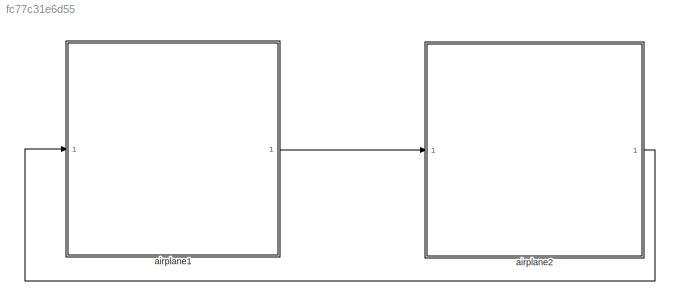
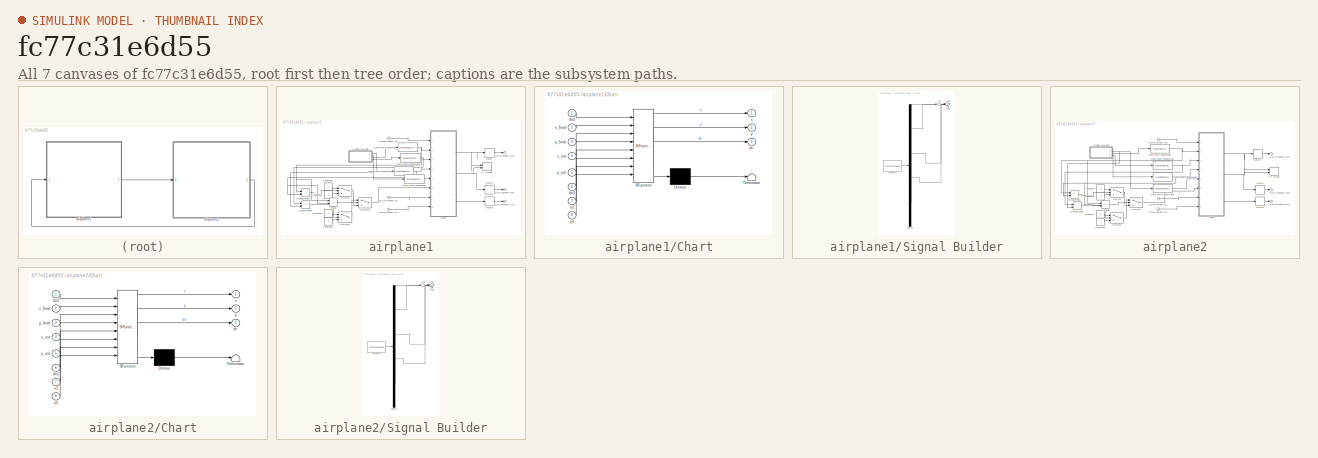
[diagram: thumbnail index - all 7 canvases of the model, root first then tree order]
MODEL slx_fc77c31e6d55
KIND model
CONFIG AbsTol = auto
CONFIG EnableMultiTasking = off
CONFIG FixedStep = 0.1
CONFIG MaxStep = auto
CONFIG MinStep = auto
CONFIG RelTol = 1e-3
CONFIG SampleTimeConstraint = Unconstrained
CONFIG SolverName = ode15s
CONFIG StartTime = 0.0
CONFIG StopTime = 50.0
WORKSPACE source: mxarray member
WORKSPACE interface_msg1: Simulink.Bus (value not decoded)
WORKSPACE interface_msg2: Simulink.Bus (value not decoded)
BLOCK [SubSystem] airplane1
  PortSchema = {"entries":[{"content":{"headerSize":26,"margin":15,"minimumSpacing":25,"sides":[{"content":{"connectorIds":["In1"]},"type":"ConnectorPlacement.EquallySpacedRectSide","uuid":"381f2f55-2706-4a20-9b5c-d1d238ade6d6"},{"content":{"connectorIds":["Out1"],"side":"RIGHT"},"type":"ConnectorPlacement.EquallySpacedRectSide","uuid":"25d2ce27-d2f9-4747-86b3-2bcde07e6841"},{"content":{"connectorIds":[],"side":...<+432ch>
  Ports = [1, 1]
  RequestExecContextInheritance = off
BLOCK [Inport] airplane1/Bus Element In1
BLOCK [Inport] airplane1/Bus Element In7
BLOCK [Inport] airplane1/Bus Element In8
BLOCK [Outport] airplane1/Bus Element Out1
BLOCK [Outport] airplane1/Bus Element Out2
BLOCK [Outport] airplane1/Bus Element Out4
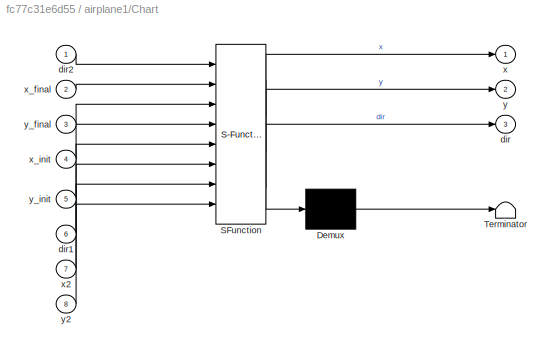
BLOCK [SubSystem] airplane1/Chart
  ErrorFcn = Stateflow.Translate.translate
  PermitHierarchicalResolution = ExplicitOnly
  Ports = [8, 3]
  RequestExecContextInheritance = off
  SFBlockType = Chart
  TreatAsAtomicUnit = on
BLOCK [Demux] airplane1/Chart/ Demux 
  Outputs = 1
  Ports = [1, 1]
BLOCK [S-Function] airplane1/Chart/ SFunction 
  EnableBusSupport = on
  FunctionName = sf_sfun
  PortCounts = [8 4]
  Ports = [8, 4]
  SFcnIsStateOwnerBlock = off
  SFunctionDeploymentMode = off
  Tag = Stateflow S-Function 1
BLOCK [Terminator] airplane1/Chart/ Terminator 
BLOCK [Outport] airplane1/Chart/dir
  Port = 3
BLOCK [Inport] airplane1/Chart/dir1
  Port = 6
BLOCK [Inport] airplane1/Chart/dir2
BLOCK [Outport] airplane1/Chart/x
BLOCK [Inport] airplane1/Chart/x2
  Port = 7
BLOCK [Inport] airplane1/Chart/x_final
  Port = 2
BLOCK [Inport] airplane1/Chart/x_init
  Port = 4
BLOCK [Outport] airplane1/Chart/y
  Port = 2
BLOCK [Inport] airplane1/Chart/y2
  Port = 8
BLOCK [Inport] airplane1/Chart/y_final
  Port = 3
BLOCK [Inport] airplane1/Chart/y_init
  Port = 5
BLOCK [Constant] airplane1/Constant4
  OutDataTypeStr = uint32
BLOCK [Constant] airplane1/Constant5
  OutDataTypeStr = uint32
  Value = 3
BLOCK [Constant] airplane1/Constant6
  OutDataTypeStr = uint32
  Value = 2
BLOCK [Constant] airplane1/Constant7
  OutDataTypeStr = uint32
  Value = 0
BLOCK [DataTypeConversion] airplane1/Data Type Conversion
  OutDataTypeStr = int32
  RndMeth = Floor
  SaturateOnIntegerOverflow = off
BLOCK [DataTypeConversion] airplane1/Data Type Conversion1
  OutDataTypeStr = int32
  RndMeth = Floor
  SaturateOnIntegerOverflow = off
BLOCK [DataTypeConversion] airplane1/Data Type Conversion2
  OutDataTypeStr = int32
  RndMeth = Floor
  SaturateOnIntegerOverflow = off
BLOCK [DataTypeConversion] airplane1/Data Type Conversion3
  OutDataTypeStr = int32
  RndMeth = Floor
  SaturateOnIntegerOverflow = off
BLOCK [Delay] airplane1/Delay
  DelayLength = 1
  InputPortMap = u0
  Ports = [1, 1]
BLOCK [Delay] airplane1/Delay1
  DelayLength = 1
  InputPortMap = u0
  Ports = [1, 1]
BLOCK [Delay] airplane1/Delay2
  DelayLength = 1
  InputPortMap = u0
  Ports = [1, 1]
BLOCK [RelationalOperator] airplane1/Equal
  InputSameDT = off
  Operator = ==
  OutDataTypeStr = boolean
  Ports = [2, 1]
  RndMeth = Simplest
BLOCK [RelationalOperator] airplane1/GreaterThan
  InputSameDT = off
  Operator = >
  OutDataTypeStr = boolean
  Ports = [2, 1]
  RndMeth = Simplest
BLOCK [RelationalOperator] airplane1/GreaterThan1
  InputSameDT = off
  Operator = >
  OutDataTypeStr = boolean
  Ports = [2, 1]
  RndMeth = Simplest
BLOCK [SubSystem] airplane1/Signal Builder
  ClipboardFcn = sigbuilder_block('clipboard');
  CloseFcn = sigbuilder_block('close');
  ContinueFcn = sigbuilder_block('continue');
  CopyFcn = sigbuilder_block('copy');
  DeleteFcn = sigbuilder_block('delete');
  LoadFcn = sigbuilder_block('load');
  MaskHideContents = on
  ModelCloseFcn = sigbuilder_block('modelClose');
  NameChangeFcn = sigbuilder_block('namechange');
  OpenFcn = sigbuilder_block('open',[351.75 138 550.5 355.5 ]);
  PauseFcn = sigbuilder_block('pause');
  Ports = [0, 4]
  PreSaveFcn = sigbuilder_block('preSave');
  RequestExecContextInheritance = off
  StartFcn = sigbuilder_block('start');
  StopFcn = sigbuilder_block('stop');
  Tag = STV Subsys
BLOCK [Demux] airplane1/Signal Builder/Demux
  DisplayOption = none
  Ports = [1, 4]
  Tag = STV Demux
BLOCK [FromWorkspace] airplane1/Signal Builder/FromWs
  Tag = STV FromWs
  VariableName = tuvar
BLOCK [Outport] airplane1/Signal Builder/x_final
  Port = 3
  Tag = STV Outport
BLOCK [Outport] airplane1/Signal Builder/x_init
  Tag = STV Outport
BLOCK [Outport] airplane1/Signal Builder/y_final
  Port = 4
  Tag = STV Outport
BLOCK [Outport] airplane1/Signal Builder/y_init
  Port = 2
  Tag = STV Outport
BLOCK [Switch] airplane1/Switch
  Criteria = u2 > Threshold
  InputSameDT = off
  SaturateOnIntegerOverflow = off
BLOCK [Switch] airplane1/Switch1
  Criteria = u2 > Threshold
  InputSameDT = off
  SaturateOnIntegerOverflow = off
BLOCK [Switch] airplane1/Switch2
  Criteria = u2 ~= 0
  InputSameDT = off
  OutDataTypeStr = int32
  SaturateOnIntegerOverflow = off
BLOCK [Record] airplane1/XY Graph
  CompatibilityTag = XY
  FileSettingsInternal = {"entries":[{"content":{"excelSettings":{"content":{},"type":"Streamout.ExcelSettings"}},"type":"Streamout.FileSettingStorage","uuid":"259eee5e-7291-4375-968a-4c28429b4305"}],"packageUris":["http://schema.mathworks.com/mf0/streamout_blocks/R2020a"],"version":"1.0"}
  Layout = [1 1]
  Ports = [2]
  SignalsInternal = {"entries":[{"content":{"signals":[{"content":{"blockPath":["prj_v2_sb/airplane1/XY Graph"],"channel":[],"dimensions":[1],"domain":"prj_v2_sb/airplane1/XY Graph","lineColor":"#a2142f","plots":[1],"port":1,"sid":[""],"signalID":8888,"signalName":"Chart:1"},"type":"RecordBlkView.Signal","uuid":"75ce961a-c881-462b-a8e4-1a08f6d6652d"},{"content":{"blockPath":["prj_v2_sb/airplane1/XY Graph"],"channel":...<+407ch>
  VisualizationBindings = {"xyplotplugin":{"info":[{"series":[{"bindingParametersList":[{"parameter":"X-Axis","signalID":8888,"signalName":"Chart:1"},{"parameter":"Y-Axis","signalID":8892,"signalName":"Chart:2"}],"seriesID":35656}],"subplotID":1}]}}
BLOCK [SubSystem] airplane2
  PortSchema = {"entries":[{"content":{"headerSize":26,"margin":15,"minimumSpacing":25,"sides":[{"content":{"connectorIds":["In1"]},"type":"ConnectorPlacement.EquallySpacedRectSide","uuid":"381f2f55-2706-4a20-9b5c-d1d238ade6d6"},{"content":{"connectorIds":["Out1"],"side":"RIGHT"},"type":"ConnectorPlacement.EquallySpacedRectSide","uuid":"25d2ce27-d2f9-4747-86b3-2bcde07e6841"},{"content":{"connectorIds":[],"side":...<+432ch>
  Ports = [1, 1]
  RequestExecContextInheritance = off
BLOCK [Inport] airplane2/Bus Element In7
BLOCK [Inport] airplane2/Bus Element In8
BLOCK [Inport] airplane2/Bus Element In9
BLOCK [Outport] airplane2/Bus Element Out2
BLOCK [Outport] airplane2/Bus Element Out3
BLOCK [Outport] airplane2/Bus Element Out4
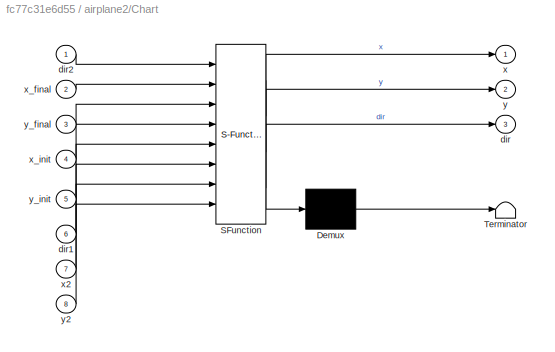
BLOCK [SubSystem] airplane2/Chart
  ErrorFcn = Stateflow.Translate.translate
  PermitHierarchicalResolution = ExplicitOnly
  Ports = [8, 3]
  RequestExecContextInheritance = off
  SFBlockType = Chart
  TreatAsAtomicUnit = on
BLOCK [Demux] airplane2/Chart/ Demux 
  Outputs = 1
  Ports = [1, 1]
BLOCK [S-Function] airplane2/Chart/ SFunction 
  EnableBusSupport = on
  FunctionName = sf_sfun
  PortCounts = [8 4]
  Ports = [8, 4]
  SFcnIsStateOwnerBlock = off
  SFunctionDeploymentMode = off
  Tag = Stateflow S-Function 3
BLOCK [Terminator] airplane2/Chart/ Terminator 
BLOCK [Outport] airplane2/Chart/dir
  Port = 3
BLOCK [Inport] airplane2/Chart/dir1
  Port = 6
BLOCK [Inport] airplane2/Chart/dir2
BLOCK [Outport] airplane2/Chart/x
BLOCK [Inport] airplane2/Chart/x2
  Port = 7
BLOCK [Inport] airplane2/Chart/x_final
  Port = 2
BLOCK [Inport] airplane2/Chart/x_init
  Port = 4
BLOCK [Outport] airplane2/Chart/y
  Port = 2
BLOCK [Inport] airplane2/Chart/y2
  Port = 8
BLOCK [Inport] airplane2/Chart/y_final
  Port = 3
BLOCK [Inport] airplane2/Chart/y_init
  Port = 5
BLOCK [Constant] airplane2/Constant4
  OutDataTypeStr = uint32
BLOCK [Constant] airplane2/Constant5
  OutDataTypeStr = uint32
  Value = 3
BLOCK [Constant] airplane2/Constant6
  OutDataTypeStr = uint32
  Value = 2
BLOCK [Constant] airplane2/Constant7
  OutDataTypeStr = uint32
  Value = 0
BLOCK [DataTypeConversion] airplane2/Data Type Conversion1
  OutDataTypeStr = int32
  RndMeth = Floor
  SaturateOnIntegerOverflow = off
BLOCK [DataTypeConversion] airplane2/Data Type Conversion2
  OutDataTypeStr = int32
  RndMeth = Floor
  SaturateOnIntegerOverflow = off
BLOCK [DataTypeConversion] airplane2/Data Type Conversion3
  OutDataTypeStr = int32
  RndMeth = Floor
  SaturateOnIntegerOverflow = off
BLOCK [DataTypeConversion] airplane2/Data Type Conversion4
  OutDataTypeStr = int32
  RndMeth = Floor
  SaturateOnIntegerOverflow = off
BLOCK [Delay] airplane2/Delay1
  DelayLength = 1
  InputPortMap = u0
  Ports = [1, 1]
BLOCK [Delay] airplane2/Delay2
  DelayLength = 1
  InputPortMap = u0
  Ports = [1, 1]
BLOCK [Delay] airplane2/Delay3
  DelayLength = 1
  InputPortMap = u0
  Ports = [1, 1]
BLOCK [RelationalOperator] airplane2/Equal
  InputSameDT = off
  Operator = ==
  OutDataTypeStr = boolean
  Ports = [2, 1]
  RndMeth = Simplest
BLOCK [RelationalOperator] airplane2/GreaterThan
  InputSameDT = off
  Operator = >
  OutDataTypeStr = boolean
  Ports = [2, 1]
  RndMeth = Simplest
BLOCK [RelationalOperator] airplane2/GreaterThan1
  InputSameDT = off
  Operator = >
  OutDataTypeStr = boolean
  Ports = [2, 1]
  RndMeth = Simplest
BLOCK [SubSystem] airplane2/Signal Builder
  ClipboardFcn = sigbuilder_block('clipboard');
  CloseFcn = sigbuilder_block('close');
  ContinueFcn = sigbuilder_block('continue');
  CopyFcn = sigbuilder_block('copy');
  DeleteFcn = sigbuilder_block('delete');
  LoadFcn = sigbuilder_block('load');
  MaskHideContents = on
  ModelCloseFcn = sigbuilder_block('modelClose');
  NameChangeFcn = sigbuilder_block('namechange');
  OpenFcn = sigbuilder_block('open',[351.75 138 550.5 355.5 ]);
  PauseFcn = sigbuilder_block('pause');
  Ports = [0, 4]
  PreSaveFcn = sigbuilder_block('preSave');
  RequestExecContextInheritance = off
  StartFcn = sigbuilder_block('start');
  StopFcn = sigbuilder_block('stop');
  Tag = STV Subsys
BLOCK [Demux] airplane2/Signal Builder/Demux
  DisplayOption = none
  Ports = [1, 4]
  Tag = STV Demux
BLOCK [FromWorkspace] airplane2/Signal Builder/FromWs
  Tag = STV FromWs
  VariableName = tuvar
BLOCK [Outport] airplane2/Signal Builder/x_final
  Port = 3
  Tag = STV Outport
BLOCK [Outport] airplane2/Signal Builder/x_init
  Tag = STV Outport
BLOCK [Outport] airplane2/Signal Builder/y_final
  Port = 4
  Tag = STV Outport
BLOCK [Outport] airplane2/Signal Builder/y_init
  Port = 2
  Tag = STV Outport
BLOCK [Switch] airplane2/Switch
  Criteria = u2 > Threshold
  InputSameDT = off
  SaturateOnIntegerOverflow = off
BLOCK [Switch] airplane2/Switch1
  Criteria = u2 > Threshold
  InputSameDT = off
  SaturateOnIntegerOverflow = off
BLOCK [Switch] airplane2/Switch2
  Criteria = u2 ~= 0
  InputSameDT = off
  OutDataTypeStr = int32
  SaturateOnIntegerOverflow = off
BLOCK [Record] airplane2/XY Graph
  CompatibilityTag = XY
  FileSettingsInternal = {"entries":[{"content":{"excelSettings":{"content":{},"type":"Streamout.ExcelSettings"}},"type":"Streamout.FileSettingStorage","uuid":"aa3f6859-6199-4ebf-9d41-a61cce50d281"}],"packageUris":["http://schema.mathworks.com/mf0/streamout_blocks/R2020a"],"version":"1.0"}
  Layout = [1 1]
  Ports = [2]
  SignalsInternal = {"entries":[{"content":{"signals":[{"content":{"blockPath":["prj_v2_sb/airplane2/XY Graph"],"channel":[],"dimensions":[1],"domain":"prj_v2_sb/airplane2/XY Graph","lineColor":"#a2142f","plots":[1],"port":1,"sid":[""],"signalID":8896,"signalName":"Chart:1"},"type":"RecordBlkView.Signal","uuid":"11e98f95-e29f-45c0-9cfd-6f0bf2296910"},{"content":{"blockPath":["prj_v2_sb/airplane2/XY Graph"],"channel":...<+407ch>
  VisualizationBindings = {"xyplotplugin":{"info":[{"series":[{"bindingParametersList":[{"parameter":"X-Axis","signalID":8896,"signalName":"Chart:1"},{"parameter":"Y-Axis","signalID":8900,"signalName":"Chart:2"}],"seriesID":52745}],"subplotID":1}]}}
LINE airplane1/Bus Element In1:1 -> airplane1/Chart:7
LINE airplane1/Bus Element In7:1 -> airplane1/Chart:8
LINE airplane1/Bus Element In8:1 -> airplane1/Chart:1
NET airplane1/Chart:1 -> airplane1/Delay:1, airplane1/XY Graph:1
NET airplane1/Chart:2 -> airplane1/Delay1:1, airplane1/XY Graph:2
LINE airplane1/Chart:3 -> airplane1/Delay2:1
LINE airplane1/Constant4:1 -> airplane1/Switch:1
LINE airplane1/Constant5:1 -> airplane1/Switch:3
LINE airplane1/Constant6:1 -> airplane1/Switch1:3
LINE airplane1/Constant7:1 -> airplane1/Switch1:1
NET airplane1/Data Type Conversion1:1 -> airplane1/Chart:3, airplane1/GreaterThan1:1
NET airplane1/Data Type Conversion2:1 -> airplane1/Chart:4, airplane1/Equal:2, airplane1/GreaterThan:2
LINE airplane1/Data Type Conversion3:1 -> airplane1/Chart:5
NET airplane1/Data Type Conversion:1 -> airplane1/Chart:2, airplane1/Equal:1, airplane1/GreaterThan:1
LINE airplane1/Delay1:1 -> airplane1/Bus Element Out1:1
LINE airplane1/Delay2:1 -> airplane1/Bus Element Out2:1
LINE airplane1/Delay:1 -> airplane1/Bus Element Out4:1
LINE airplane1/Equal:1 -> airplane1/Switch2:2
LINE airplane1/GreaterThan1:1 -> airplane1/Switch1:2
LINE airplane1/GreaterThan:1 -> airplane1/Switch:2
LINE airplane1/Signal Builder:1 -> airplane1/Data Type Conversion2:1
NET airplane1/Signal Builder:2 -> airplane1/Data Type Conversion3:1, airplane1/GreaterThan1:2
LINE airplane1/Signal Builder:3 -> airplane1/Data Type Conversion:1
LINE airplane1/Signal Builder:4 -> airplane1/Data Type Conversion1:1
LINE airplane1/Switch1:1 -> airplane1/Switch2:1
LINE airplane1/Switch2:1 -> airplane1/Chart:6
LINE airplane1/Switch:1 -> airplane1/Switch2:3
LINE airplane1:1 -> airplane2:1
LINE airplane2/Bus Element In7:1 -> airplane2/Chart:7
LINE airplane2/Bus Element In8:1 -> airplane2/Chart:8
LINE airplane2/Bus Element In9:1 -> airplane2/Chart:1
NET airplane2/Chart:1 -> airplane2/Delay1:1, airplane2/XY Graph:1
NET airplane2/Chart:2 -> airplane2/Delay2:1, airplane2/XY Graph:2
LINE airplane2/Chart:3 -> airplane2/Delay3:1
LINE airplane2/Constant4:1 -> airplane2/Switch:1
LINE airplane2/Constant5:1 -> airplane2/Switch:3
LINE airplane2/Constant6:1 -> airplane2/Switch1:3
LINE airplane2/Constant7:1 -> airplane2/Switch1:1
NET airplane2/Data Type Conversion1:1 -> airplane2/Chart:3, airplane2/GreaterThan1:1
NET airplane2/Data Type Conversion2:1 -> airplane2/Chart:2, airplane2/Equal:1, airplane2/GreaterThan:1
NET airplane2/Data Type Conversion3:1 -> airplane2/Chart:4, airplane2/Equal:2, airplane2/GreaterThan:2
LINE airplane2/Data Type Conversion4:1 -> airplane2/Chart:5
LINE airplane2/Delay1:1 -> airplane2/Bus Element Out2:1
LINE airplane2/Delay2:1 -> airplane2/Bus Element Out3:1
LINE airplane2/Delay3:1 -> airplane2/Bus Element Out4:1
LINE airplane2/Equal:1 -> airplane2/Switch2:2
LINE airplane2/GreaterThan1:1 -> airplane2/Switch1:2
LINE airplane2/GreaterThan:1 -> airplane2/Switch:2
LINE airplane2/Signal Builder:1 -> airplane2/Data Type Conversion3:1
NET airplane2/Signal Builder:2 -> airplane2/Data Type Conversion4:1, airplane2/GreaterThan1:2
LINE airplane2/Signal Builder:3 -> airplane2/Data Type Conversion2:1
LINE airplane2/Signal Builder:4 -> airplane2/Data Type Conversion1:1
LINE airplane2/Switch1:1 -> airplane2/Switch2:1
LINE airplane2/Switch2:1 -> airplane2/Chart:6
LINE airplane2/Switch:1 -> airplane2/Switch2:3
LINE airplane2:1 -> airplane1:1
note: NET lines group one-source signal fan-out (src -> all destinations, sorted); 1:1 wires keep LINE
CHART airplane1/Chart states=3 transitions=12
  STATE_LABEL 'initial\nduring:\ns_dot = 1;\n'
  STATE_LABEL 'horizontal_move\nduring:\ns_dot = 1;\n'
  STATE_LABEL 'vertical_move\nduring:\ns_dot = 1;\n'
CHART airplane2/Chart states=3 transitions=12
  STATE_LABEL 'initial\nduring:\ns_dot = 1;'
  STATE_LABEL 'horizontal_move\nduring:\ns_dot = 1;\n'
  STATE_LABEL 'vertical_move\nduring:\ns_dot = 1;\n'
CHART  states=0 transitions=0
CHART  states=0 transitions=0
